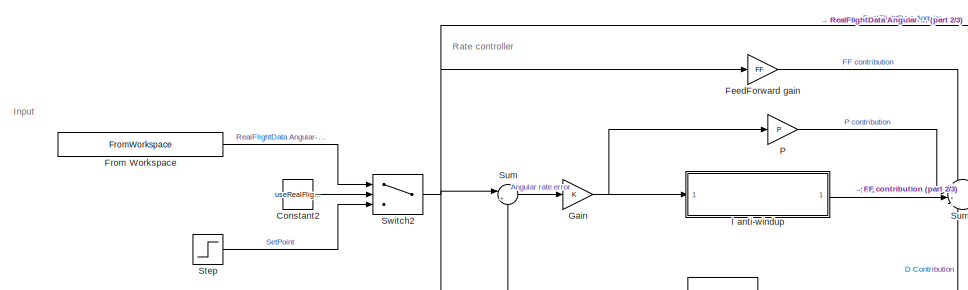
[diagram: root canvas - part 1/3, top left region]
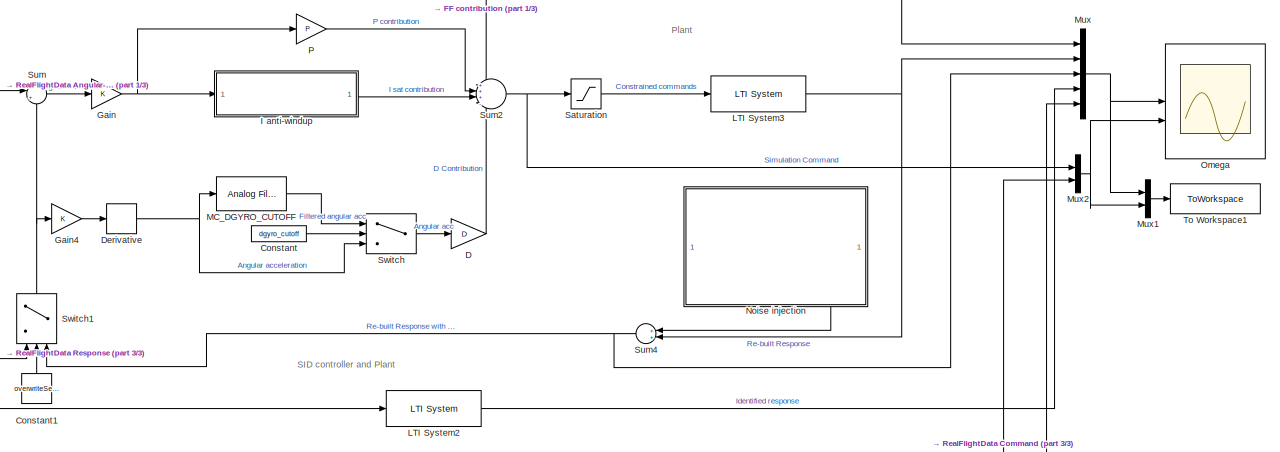
[diagram: root canvas - part 2/3, full width, middle band]
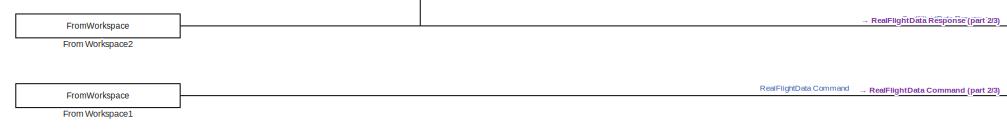
[diagram: root canvas - part 3/3, bottom left region]
MODEL slx_6470ac88ffe2
KIND model
CONFIG AbsTol = auto
CONFIG EnableMultiTasking = off
CONFIG FixedStep = 0.01
CONFIG MaxStep = auto
CONFIG MinStep = auto
CONFIG RelTol = 1e-3
CONFIG SampleTimeConstraint = Unconstrained
CONFIG SolverName = FixedStepAuto
CONFIG StartTime = 0.0
CONFIG StopTime = StopTime
BLOCK [Constant] Constant
  Value = dgyro_cutoff
BLOCK [Constant] Constant1
  NameLocation = right
  Value = overwriteSensorFeedback
BLOCK [Constant] Constant2
  Value = useRealFlightData
BLOCK [Gain] D
  Gain = D
BLOCK [Derivative] Derivative
  CoefficientInTFapproximation = 1e10
BLOCK [Gain] FeedForward gain
  Gain = FF
BLOCK [FromWorkspace] From Workspace
  VariableName = RealFlightData.AngularRate_setpoints
BLOCK [FromWorkspace] From Workspace1
  VariableName = RealFlightData.command
BLOCK [FromWorkspace] From Workspace2
  VariableName = RealFlightData.AngularRate_response
BLOCK [Gain] Gain
  Gain = K
BLOCK [Gain] Gain4
  Gain = K
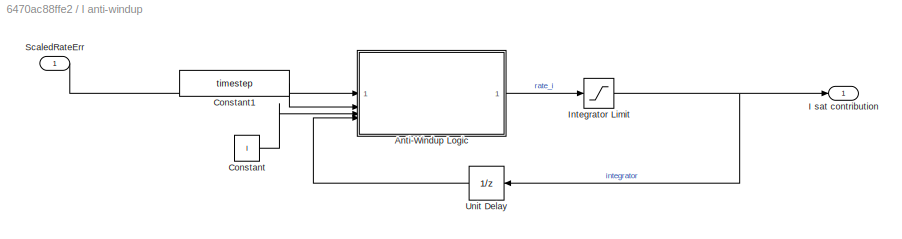
BLOCK [SubSystem] I anti-windup
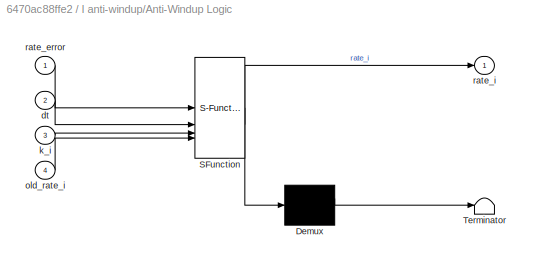
BLOCK [SubSystem] I anti-windup/Anti-Windup Logic
  ErrorFcn = Stateflow.Translate.translate
  PermitHierarchicalResolution = ExplicitOnly
  SFBlockType = MATLAB Function
  TreatAsAtomicUnit = on
BLOCK [Demux] I anti-windup/Anti-Windup Logic/ Demux 
  Outputs = 1
BLOCK [S-Function] I anti-windup/Anti-Windup Logic/ SFunction 
  EnableBusSupport = on
  FunctionName = sf_sfun
  PortCounts = [4 2]
  SFcnIsStateOwnerBlock = off
  SFunctionDeploymentMode = off
  Tag = Stateflow S-Function 5
BLOCK [Terminator] I anti-windup/Anti-Windup Logic/ Terminator 
BLOCK [Inport] I anti-windup/Anti-Windup Logic/dt
  Port = 2
BLOCK [Inport] I anti-windup/Anti-Windup Logic/k_i
  Port = 3
BLOCK [Inport] I anti-windup/Anti-Windup Logic/old_rate_i
  Port = 4
BLOCK [Inport] I anti-windup/Anti-Windup Logic/rate_error
BLOCK [Outport] I anti-windup/Anti-Windup Logic/rate_i
BLOCK [Constant] I anti-windup/Constant
  Value = I
BLOCK [Constant] I anti-windup/Constant1
  Value = timestep
BLOCK [Outport] I anti-windup/I sat contribution
BLOCK [Saturate] I anti-windup/Integrator Limit
  LowerLimit = -windup_limit
  UpperLimit = windup_limit
BLOCK [Inport] I anti-windup/ScaledRateErr
BLOCK [UnitDelay] I anti-windup/Unit Delay
  HasFrameUpgradeWarning = on
  SampleTime = -1
BLOCK [Reference] LTI System2  REF=cstblocks/LTI System
  SourceBlock = cstblocks/LTI System
  SourceType = LTI Block
BLOCK [Reference] LTI System3  REF=cstblocks/LTI System
  SourceBlock = cstblocks/LTI System
  SourceType = LTI Block
BLOCK [Reference] MC_DGYRO_CUTOFF  REF=dspfdesign/Analog
Filter Design
  NameLocation = top
  SourceBlock = dspfdesign/Analog\nFilter Design
  SourceType = Analog Filter Design
BLOCK [Mux] Mux
  DisplayOption = bar
  Inputs = 5
BLOCK [Mux] Mux1
  DisplayOption = bar
  Inputs = 2
BLOCK [Mux] Mux2
  DisplayOption = bar
  Inputs = 2
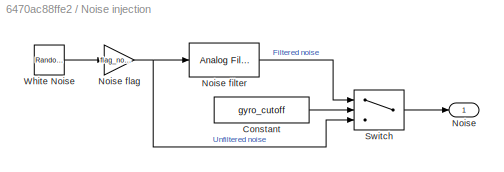
BLOCK [SubSystem] Noise injection
  PortSchema = {"entries":[{"content":{"sides":[{"content":{"connectorIds":["Out1"]},"type":"ConnectorPlacement.EquallySpacedRectSide","uuid":"43dcf535-f749-446c-b8ed-9425fce616ea"},{"content":{"connectorIds":[],"side":"RIGHT"},"type":"ConnectorPlacement.EquallySpacedRectSide","uuid":"b020978b-3129-44d5-aa5b-92d882fe7f2f"},{"content":{"connectorIds":[],"side":"TOP"},"type":"ConnectorPlacement.EquallySpacedRectSi...<+235ch>
BLOCK [Constant] Noise injection/Constant
  Value = gyro_cutoff
BLOCK [Outport] Noise injection/Noise
BLOCK [Reference] Noise injection/Noise filter  REF=dspfdesign/Analog
Filter Design
  SourceBlock = dspfdesign/Analog\nFilter Design
  SourceType = Analog Filter Design
BLOCK [Gain] Noise injection/Noise flag
  Gain = flag_noise
BLOCK [Switch] Noise injection/Switch
  Criteria = u2 > Threshold
  InputSameDT = off
  SaturateOnIntegerOverflow = off
BLOCK [RandomNumber] Noise injection/White Noise
  Variance = noise_amplitude(i)
BLOCK [Scope] Omega 
  Floating = off
  NumInputPorts = 2
  ScopeSpecificationString = Simulink.scopes.TimeScopeBlockCfg('CurrentConfiguration', extmgr.ConfigurationSet(extmgr.Configuration('Core','General UI',true),extmgr.Configuration('Core','Source UI',true),extmgr.Configuration('Sources','WiredSimulink',true,'DataLoggingVariableName','ScopeData1'),extmgr.Configuration('Visuals','Time Domain',true,'SerializedDisplays',{struct('MinYLimReal','-0.09264','MaxYLimReal','0.7715','YLabe...<+2417ch>
BLOCK [Gain] P
  Gain = P
BLOCK [Saturate] Saturation
  LowerLimit = -1
  UpperLimit = 1
BLOCK [Step] Step
  After = step_value(i)
BLOCK [Sum] Sum
  Inputs = |+-
BLOCK [Sum] Sum2
  Inputs = +++|-
BLOCK [Sum] Sum4
  Inputs = ++|
BLOCK [Switch] Switch
  Criteria = u2 > Threshold
  InputSameDT = off
  SaturateOnIntegerOverflow = off
BLOCK [Switch] Switch1
  Criteria = u2 > Threshold
  InputSameDT = off
  NameLocation = left
  SaturateOnIntegerOverflow = off
BLOCK [Switch] Switch2
  Criteria = u2 > Threshold
  InputSameDT = off
  SaturateOnIntegerOverflow = off
BLOCK [ToWorkspace] To Workspace1
  FixptAsFi = on
  MaxDataPoints = inf
  SampleTime = -1
  SaveFormat = Timeseries
  VariableName = Validation_Results
ANNOTATION (root): Input
ANNOTATION (root): Plant
ANNOTATION (root): Rate controller
ANNOTATION (root): SID controller and Plant
LINE Constant1:1 -> Switch1:2
LINE Constant2:1 -> Switch2:2
LINE Constant:1 -> Switch:2
LINE D:1 -> Sum2:4
NET Derivative:1 -> MC_DGYRO_CUTOFF:1, Switch:3
LINE FeedForward gain:1 -> Sum2:1
LINE From Workspace1:1 -> Mux2:2
NET From Workspace2:1 -> Mux:5, Switch1:1
LINE From Workspace:1 -> Switch2:1
LINE Gain4:1 -> Derivative:1
NET Gain:1 -> I anti-windup:1, P:1
LINE I anti-windup/Anti-Windup Logic:1 -> I anti-windup/Integrator Limit:1
LINE I anti-windup/Constant1:1 -> I anti-windup/Anti-Windup Logic:2
LINE I anti-windup/Constant:1 -> I anti-windup/Anti-Windup Logic:3
NET I anti-windup/Integrator Limit:1 -> I anti-windup/I sat contribution:1, I anti-windup/Unit Delay:1
LINE I anti-windup/ScaledRateErr:1 -> I anti-windup/Anti-Windup Logic:1
LINE I anti-windup/Unit Delay:1 -> I anti-windup/Anti-Windup Logic:4
LINE I anti-windup:1 -> Sum2:3
LINE LTI System2:1 -> Mux:4
NET LTI System3:1 -> Mux:2, Sum4:2
LINE MC_DGYRO_CUTOFF:1 -> Switch:1
LINE Mux1:1 -> To Workspace1:1
NET Mux2:1 -> Mux1:2, Omega :2
NET Mux:1 -> Mux1:1, Omega :1
LINE Noise injection/Constant:1 -> Noise injection/Switch:2
LINE Noise injection/Noise filter:1 -> Noise injection/Switch:1
NET Noise injection/Noise flag:1 -> Noise injection/Noise filter:1, Noise injection/Switch:3
LINE Noise injection/Switch:1 -> Noise injection/Noise:1
LINE Noise injection/White Noise:1 -> Noise injection/Noise flag:1
LINE Noise injection:1 -> Sum4:1
LINE P:1 -> Sum2:2
LINE Saturation:1 -> LTI System3:1
LINE Step:1 -> Switch2:3
NET Sum2:1 -> Mux2:1, Saturation:1
NET Sum4:1 -> Mux:3, Switch1:3
LINE Sum:1 -> Gain:1
NET Switch1:1 -> Gain4:1, Sum:2
NET Switch2:1 -> FeedForward gain:1, LTI System2:1, Mux:1, Sum:1
LINE Switch:1 -> D:1
note: NET lines group one-source signal fan-out (src -> all destinations, sorted); 1:1 wires keep LINE
CHART I anti-windup/Anti-Windup Logic states=1 transitions=1
  STATE_LABEL 'eML_blk_kernel()'
  STATE_LABEL 'SCRIPT:\nfunction rate_i = fcn(rate_error, dt, k_i, old_rate_i)\n    \n   i_factor = rate_error/deg2rad(400);\n   i_factor_sat = max(0, 1-i_factor*i_factor);\n   rate_i=old_rate_i+i_factor_sat*k_i*rate_error*dt;\n  \n\nend\n'
CHART  states=0 transitions=0
